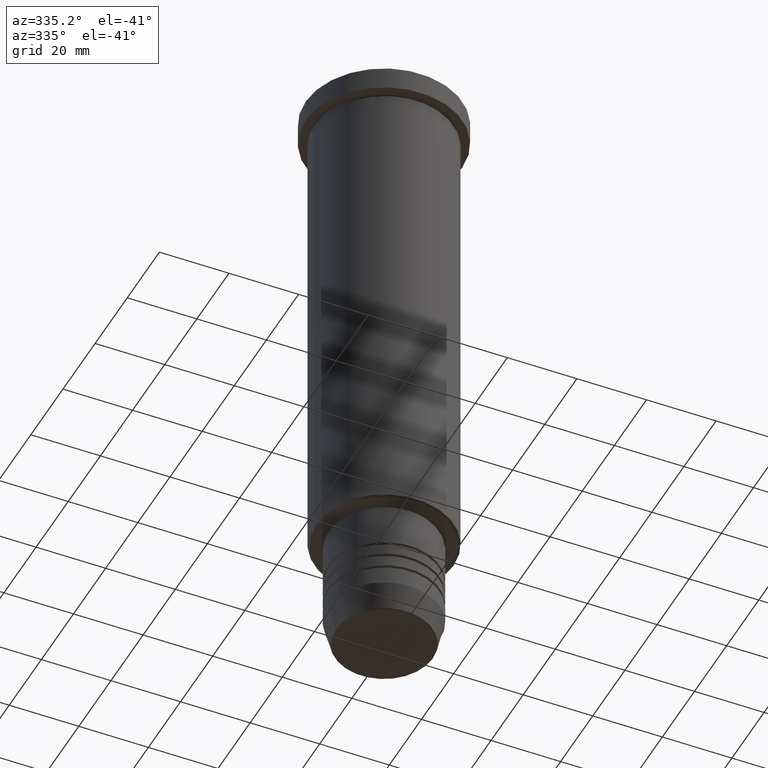
[diagram: clean part render]
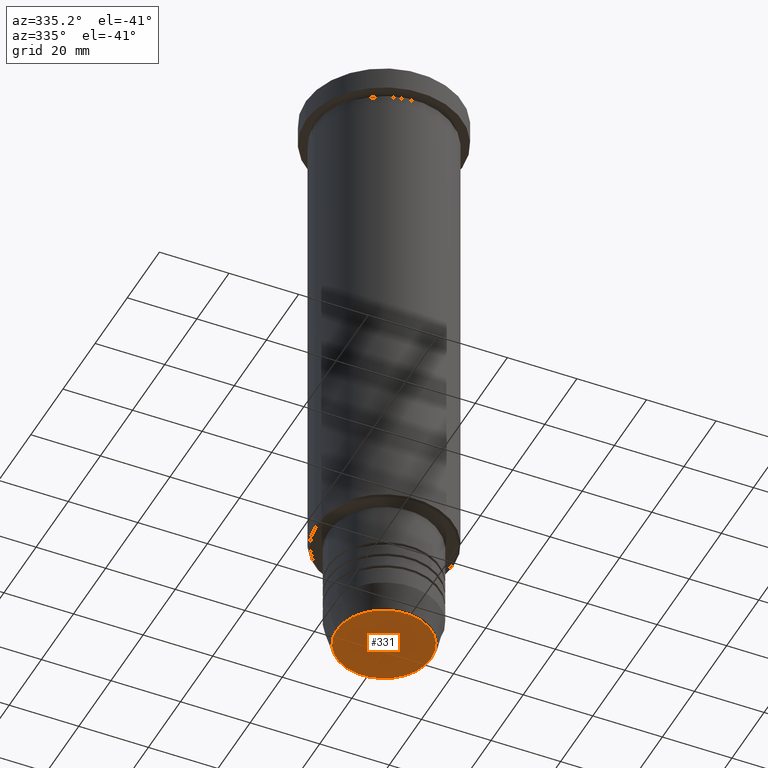
[diagram: same view with one face highlighted and labeled with its STEP entity id]
A machine part, auxiliary view. The second image highlights one B-rep face of the part: STEP entity #331.
In plain terms, the highlighted planar face has unit normal (0, -0, 1).
Its self-contained STEP definition (entity closure, byte-faithful):
#29 = CARTESIAN_POINT ( 'NONE',  ( -13.60671756277710109, 1.695915260300172047E-15, -180.0000000000000000 ) ) ;
#53 = EDGE_CURVE ( 'NONE', #220, #668, #259, .T. ) ;
#56 = CARTESIAN_POINT ( 'NONE',  ( 0.000000000000000000, 0.000000000000000000, -180.0000000000000000 ) ) ;
#78 = ORIENTED_EDGE ( 'NONE', *, *, #53, .T. ) ;
#97 = ORIENTED_EDGE ( 'NONE', *, *, #792, .T. ) ;
#135 = DIRECTION ( 'NONE',  ( 0.000000000000000000, -0.000000000000000000, 1.000000000000000000 ) ) ;
#157 = CARTESIAN_POINT ( 'NONE',  ( 0.000000000000000000, 0.000000000000000000, -180.0000000000000000 ) ) ;
#220 = VERTEX_POINT ( 'NONE', #1126 ) ;
#224 = FACE_OUTER_BOUND ( 'NONE', #451, .T. ) ;
#259 = CIRCLE ( 'NONE', #1086, 13.60671756277710109 ) ;
#331 = ADVANCED_FACE ( 'NONE', ( #224 ), #335, .F. ) ;
#335 = PLANE ( 'NONE',  #1161 ) ;
#451 = EDGE_LOOP ( 'NONE', ( #78, #97 ) ) ;
#453 = DIRECTION ( 'NONE',  ( 1.000000000000000000, 0.000000000000000000, 0.000000000000000000 ) ) ;
#496 = AXIS2_PLACEMENT_3D ( 'NONE', #806, #1173, #693 ) ;
#508 = DIRECTION ( 'NONE',  ( 1.000000000000000000, 0.000000000000000000, 0.000000000000000000 ) ) ;
#668 = VERTEX_POINT ( 'NONE', #29 ) ;
#693 = DIRECTION ( 'NONE',  ( 1.000000000000000000, 0.000000000000000000, 0.000000000000000000 ) ) ;
#792 = EDGE_CURVE ( 'NONE', #668, #220, #1004, .T. ) ;
#806 = CARTESIAN_POINT ( 'NONE',  ( 0.000000000000000000, 0.000000000000000000, -180.0000000000000000 ) ) ;
#896 = DIRECTION ( 'NONE',  ( 0.000000000000000000, 0.000000000000000000, -1.000000000000000000 ) ) ;
#1004 = CIRCLE ( 'NONE', #496, 13.60671756277710109 ) ;
#1086 = AXIS2_PLACEMENT_3D ( 'NONE', #56, #896, #453 ) ;
#1126 = CARTESIAN_POINT ( 'NONE',  ( 13.60671756277710109, 0.000000000000000000, -180.0000000000000000 ) ) ;
#1161 = AXIS2_PLACEMENT_3D ( 'NONE', #157, #135, #508 ) ;
#1173 = DIRECTION ( 'NONE',  ( 0.000000000000000000, 0.000000000000000000, -1.000000000000000000 ) ) ;